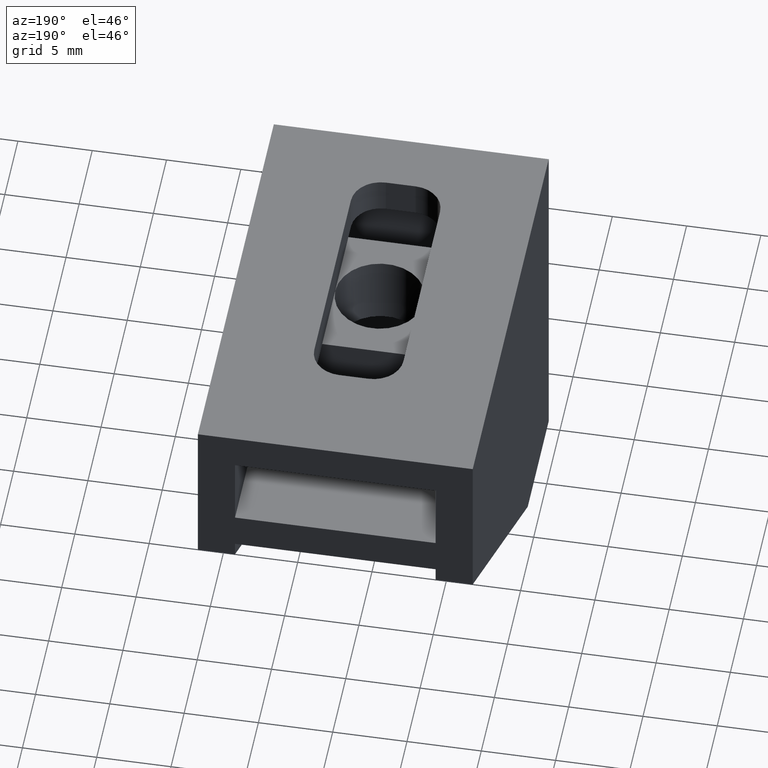
[diagram: clean part render]
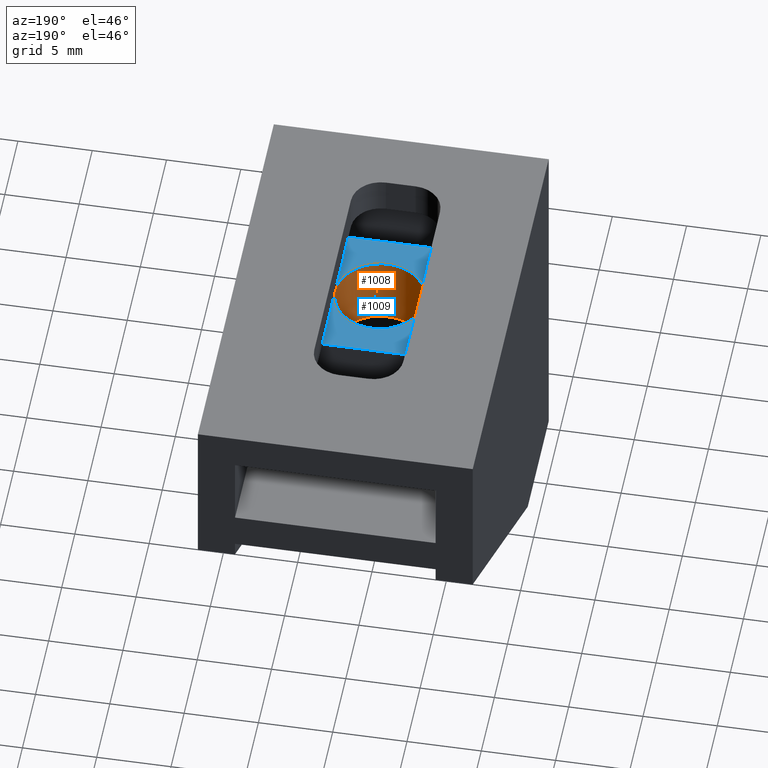
[diagram: same view with the hole feature highlighted: cylindrical wall and planar end face, labeled with their STEP entity ids]
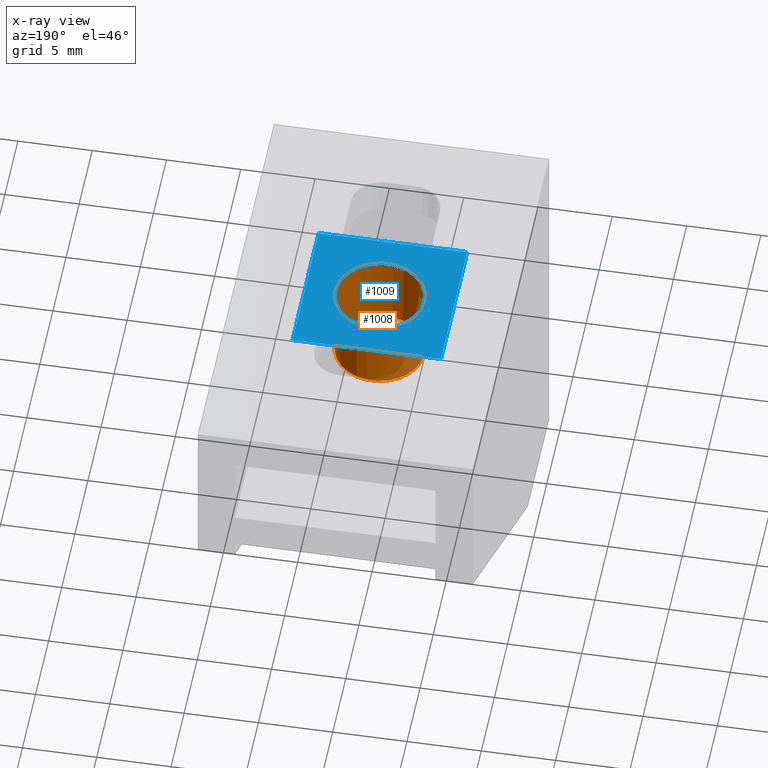
[diagram: x-ray of the same camera — body ghosted, the hole faces saturated]
A machine part, auxiliary view. The highlighted faces form one hole feature of diameter 6 mm: the cylindrical wall (entity #1008, orange) and its adjacent planar end face (entity #1009, blue) — they share a circular edge in the B-rep.
The next image is the same camera in x-ray (body ghosted, the hole faces saturated) — the bore reads through the body.
Wall:
#305=FACE_BOUND('',#370,.T.);
#314=FACE_OUTER_BOUND('',#369,.T.);
#369=EDGE_LOOP('',(#703));
#370=EDGE_LOOP('',(#704));
#433=CIRCLE('',#1067,3.);
#434=CIRCLE('',#1068,3.);
#459=VERTEX_POINT('',#1433);
#460=VERTEX_POINT('',#1435);
#557=EDGE_CURVE('',#459,#459,#433,.T.);
#558=EDGE_CURVE('',#460,#460,#434,.T.);
#703=ORIENTED_EDGE('',*,*,#557,.F.);
#704=ORIENTED_EDGE('',*,*,#558,.F.);
#995=CYLINDRICAL_SURFACE('',#1066,3.);
#1008=ADVANCED_FACE('',(#314,#305),#995,.F.);
#1066=AXIS2_PLACEMENT_3D('',#1432,#1149,#1150);
#1067=AXIS2_PLACEMENT_3D('',#1434,#1151,#1152);
#1068=AXIS2_PLACEMENT_3D('',#1436,#1153,#1154);
#1149=DIRECTION('center_axis',(0.,0.,-1.));
#1150=DIRECTION('ref_axis',(-1.,0.,0.));
#1151=DIRECTION('center_axis',(0.,0.,-1.));
#1152=DIRECTION('ref_axis',(-1.,0.,0.));
#1153=DIRECTION('center_axis',(0.,0.,1.));
#1154=DIRECTION('ref_axis',(-1.,0.,0.));
#1432=CARTESIAN_POINT('Origin',(0.,12.,16.5));
#1433=CARTESIAN_POINT('',(3.,12.,6.50000000000003));
#1434=CARTESIAN_POINT('Origin',(0.,12.,6.50000000000003));
#1435=CARTESIAN_POINT('',(-3.,12.,1.50000000000003));
#1436=CARTESIAN_POINT('Origin',(0.,12.,1.50000000000003));
End face:
#15=LINE('',#1440,#135);
#16=LINE('',#1442,#136);
#17=LINE('',#1444,#137);
#18=LINE('',#1445,#138);
#135=VECTOR('',#1157,10.);
#136=VECTOR('',#1158,10.);
#137=VECTOR('',#1159,10.);
#138=VECTOR('',#1160,10.);
#255=PLANE('',#1069);
#306=FACE_BOUND('',#372,.T.);
#315=FACE_OUTER_BOUND('',#371,.T.);
#371=EDGE_LOOP('',(#705,#706,#707,#708));
#372=EDGE_LOOP('',(#709));
#433=CIRCLE('',#1067,3.);
#459=VERTEX_POINT('',#1433);
#461=VERTEX_POINT('',#1438);
#462=VERTEX_POINT('',#1439);
#463=VERTEX_POINT('',#1441);
#464=VERTEX_POINT('',#1443);
#557=EDGE_CURVE('',#459,#459,#433,.T.);
#559=EDGE_CURVE('',#461,#462,#15,.T.);
#560=EDGE_CURVE('',#462,#463,#16,.T.);
#561=EDGE_CURVE('',#464,#463,#17,.T.);
#562=EDGE_CURVE('',#461,#464,#18,.T.);
#705=ORIENTED_EDGE('',*,*,#559,.T.);
#706=ORIENTED_EDGE('',*,*,#560,.T.);
#707=ORIENTED_EDGE('',*,*,#561,.F.);
#708=ORIENTED_EDGE('',*,*,#562,.F.);
#709=ORIENTED_EDGE('',*,*,#557,.T.);
#1009=ADVANCED_FACE('',(#315,#306),#255,.F.);
#1067=AXIS2_PLACEMENT_3D('',#1434,#1151,#1152);
#1069=AXIS2_PLACEMENT_3D('',#1437,#1155,#1156);
#1151=DIRECTION('center_axis',(0.,0.,-1.));
#1152=DIRECTION('ref_axis',(-1.,0.,0.));
#1155=DIRECTION('center_axis',(0.,0.,-1.));
#1156=DIRECTION('ref_axis',(-1.,0.,0.));
#1157=DIRECTION('',(0.,-1.,0.));
#1158=DIRECTION('',(1.,0.,0.));
#1159=DIRECTION('',(0.,-1.,0.));
#1160=DIRECTION('',(1.,0.,0.));
#1433=CARTESIAN_POINT('',(3.,12.,6.50000000000003));
#1434=CARTESIAN_POINT('Origin',(0.,12.,6.50000000000003));
#1437=CARTESIAN_POINT('Origin',(-5.,17.,6.50000000000003));
#1438=CARTESIAN_POINT('',(-5.,17.,6.50000000000003));
#1439=CARTESIAN_POINT('',(-5.,7.,6.50000000000003));
#1440=CARTESIAN_POINT('',(-5.,17.,6.50000000000003));
#1441=CARTESIAN_POINT('',(5.,7.,6.50000000000003));
#1442=CARTESIAN_POINT('',(-5.,7.,6.50000000000003));
#1443=CARTESIAN_POINT('',(5.,17.,6.50000000000003));
#1444=CARTESIAN_POINT('',(5.,17.,6.50000000000003));
#1445=CARTESIAN_POINT('',(-5.,17.,6.50000000000003));